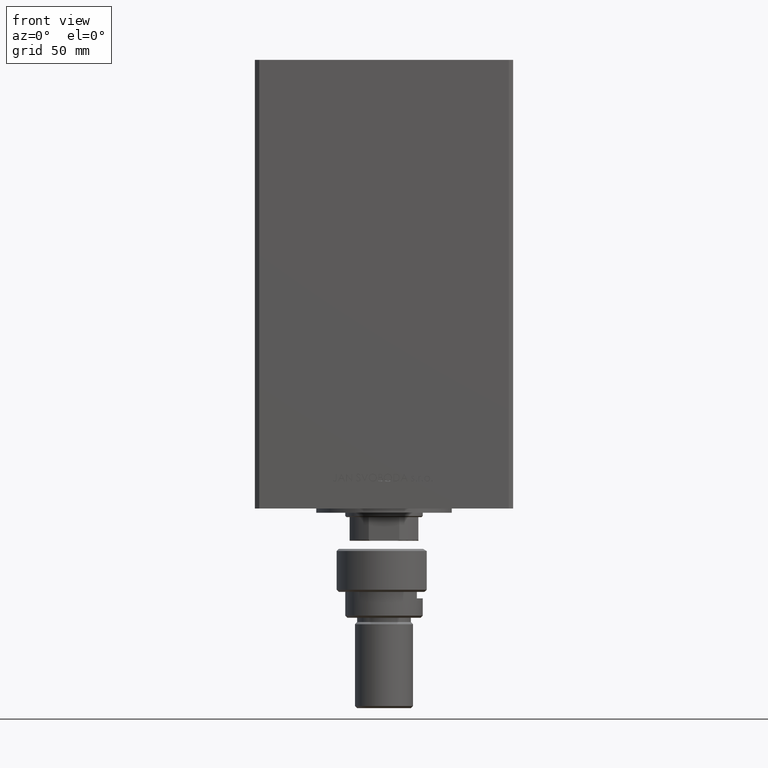
[diagram: clean part render]
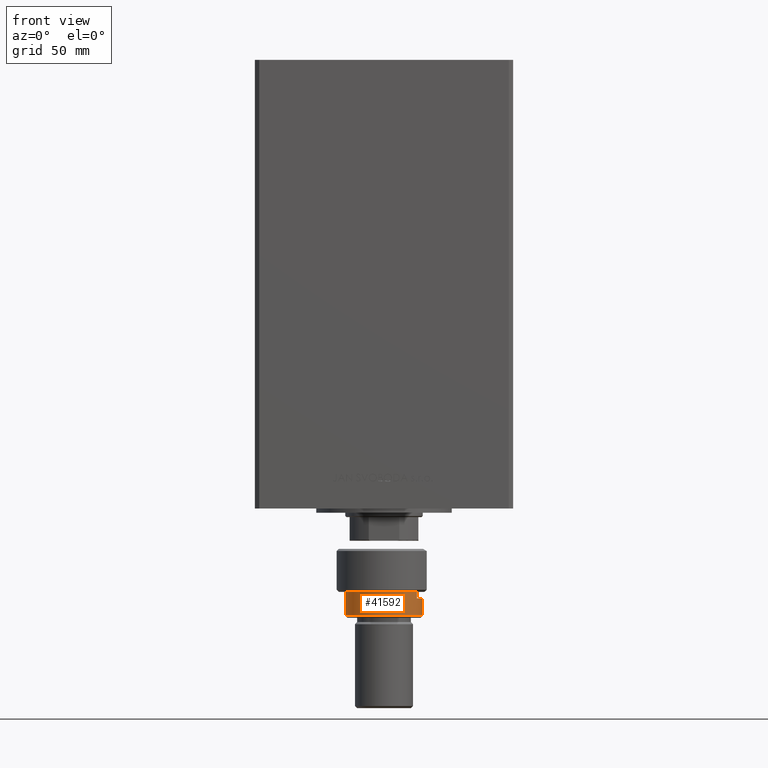
[diagram: same view with one face highlighted and labeled with its STEP entity id]
A machine part, front view. The second image highlights one B-rep face of the part: STEP entity #41592.
In plain terms, the highlighted cylindrical surface (partial cylindrical patch) has radius 18 mm, axis along (0, -0, 1).
Its self-contained STEP definition (entity closure, byte-faithful):
#155 = VERTEX_POINT ( 'NONE', #30071 ) ;
#2081 = CARTESIAN_POINT ( 'NONE',  ( -15.28888485142065434, -9.500000000000000000, 23.00000000000000000 ) ) ;
#3965 = ORIENTED_EDGE ( 'NONE', *, *, #32400, .F. ) ;
#3966 = CARTESIAN_POINT ( 'NONE',  ( 0.000000000000000000, 0.000000000000000000, 32.00000000000000000 ) ) ;
#4006 = ORIENTED_EDGE ( 'NONE', *, *, #27071, .T. ) ;
#4178 = CARTESIAN_POINT ( 'NONE',  ( 0.000000000000000000, 0.000000000000000000, 20.00000000000000000 ) ) ;
#8058 = CARTESIAN_POINT ( 'NONE',  ( 18.00000000000000000, 2.204364238465235428E-15, 30.99999999999999645 ) ) ;
#8271 = CARTESIAN_POINT ( 'NONE',  ( 0.000000000000000000, 0.000000000000000000, 30.99999999999999645 ) ) ;
#9123 = EDGE_LOOP ( 'NONE', ( #3965, #34596, #39172, #19266, #49340, #4006 ) ) ;
#9962 = VECTOR ( 'NONE', #30089, 1000.000000000000000 ) ;
#10508 = LINE ( 'NONE', #14570, #9962 ) ;
#10517 = DIRECTION ( 'NONE',  ( 0.000000000000000000, 0.000000000000000000, -1.000000000000000000 ) ) ;
#10888 = DIRECTION ( 'NONE',  ( -0.000000000000000000, -0.000000000000000000, -1.000000000000000000 ) ) ;
#11016 = DIRECTION ( 'NONE',  ( -1.000000000000000000, 0.000000000000000000, 0.000000000000000000 ) ) ;
#11306 = CIRCLE ( 'NONE', #12120, 18.00000000000000000 ) ;
#12120 = AXIS2_PLACEMENT_3D ( 'NONE', #4178, #27325, #19959 ) ;
#12293 = VERTEX_POINT ( 'NONE', #20474 ) ;
#14570 = CARTESIAN_POINT ( 'NONE',  ( 18.00000000000000000, 2.204364238465235428E-15, 32.00000000000000000 ) ) ;
#14854 = AXIS2_PLACEMENT_3D ( 'NONE', #45398, #10517, #11016 ) ;
#15258 = CIRCLE ( 'NONE', #25028, 18.00000000000000000 ) ;
#19266 = ORIENTED_EDGE ( 'NONE', *, *, #37236, .F. ) ;
#19509 = CARTESIAN_POINT ( 'NONE',  ( -18.00000000000000000, 0.000000000000000000, 30.99999999999999645 ) ) ;
#19959 = DIRECTION ( 'NONE',  ( 1.000000000000000000, 0.000000000000000000, 0.000000000000000000 ) ) ;
#20474 = CARTESIAN_POINT ( 'NONE',  ( -15.28888485142065434, -9.500000000000000000, 19.99999999999999645 ) ) ;
#22303 = DIRECTION ( 'NONE',  ( -1.000000000000000000, 0.000000000000000000, 0.000000000000000000 ) ) ;
#22355 = VERTEX_POINT ( 'NONE', #46410 ) ;
#23293 = FACE_OUTER_BOUND ( 'NONE', #9123, .T. ) ;
#23529 = DIRECTION ( 'NONE',  ( 0.000000000000000000, 0.000000000000000000, -1.000000000000000000 ) ) ;
#25028 = AXIS2_PLACEMENT_3D ( 'NONE', #8271, #23529, #27086 ) ;
#27071 = EDGE_CURVE ( 'NONE', #12293, #155, #11306, .T. ) ;
#27086 = DIRECTION ( 'NONE',  ( 1.000000000000000000, 0.000000000000000000, 0.000000000000000000 ) ) ;
#27104 = DIRECTION ( 'NONE',  ( -0.000000000000000000, -0.000000000000000000, -1.000000000000000000 ) ) ;
#27325 = DIRECTION ( 'NONE',  ( 0.000000000000000000, 0.000000000000000000, 1.000000000000000000 ) ) ;
#27377 = DIRECTION ( 'NONE',  ( -0.000000000000000000, -0.000000000000000000, -1.000000000000000000 ) ) ;
#30071 = CARTESIAN_POINT ( 'NONE',  ( 18.00000000000000000, 2.204364238465235428E-15, 20.00000000000000000 ) ) ;
#30089 = DIRECTION ( 'NONE',  ( -0.000000000000000000, -0.000000000000000000, -1.000000000000000000 ) ) ;
#30481 = CARTESIAN_POINT ( 'NONE',  ( -18.00000000000000000, 0.000000000000000000, 32.00000000000000000 ) ) ;
#32400 = EDGE_CURVE ( 'NONE', #34173, #155, #10508, .T. ) ;
#34018 = CYLINDRICAL_SURFACE ( 'NONE', #48337, 18.00000000000000000 ) ;
#34173 = VERTEX_POINT ( 'NONE', #8058 ) ;
#34596 = ORIENTED_EDGE ( 'NONE', *, *, #49411, .T. ) ;
#37236 = EDGE_CURVE ( 'NONE', #40256, #22355, #45756, .T. ) ;
#38739 = EDGE_CURVE ( 'NONE', #40256, #12293, #45991, .T. ) ;
#39172 = ORIENTED_EDGE ( 'NONE', *, *, #44278, .T. ) ;
#39994 = LINE ( 'NONE', #30481, #44369 ) ;
#40256 = VERTEX_POINT ( 'NONE', #2081 ) ;
#41592 = ADVANCED_FACE ( 'NONE', ( #23293 ), #34018, .T. ) ;
#44278 = EDGE_CURVE ( 'NONE', #46178, #22355, #39994, .T. ) ;
#44369 = VECTOR ( 'NONE', #10888, 1000.000000000000000 ) ;
#45398 = CARTESIAN_POINT ( 'NONE',  ( 0.000000000000000000, 0.000000000000000000, 23.00000000000000000 ) ) ;
#45756 = CIRCLE ( 'NONE', #14854, 18.00000000000000000 ) ;
#45797 = VECTOR ( 'NONE', #27377, 1000.000000000000000 ) ;
#45991 = LINE ( 'NONE', #46244, #45797 ) ;
#46178 = VERTEX_POINT ( 'NONE', #19509 ) ;
#46244 = CARTESIAN_POINT ( 'NONE',  ( -15.28888485142065434, -9.500000000000000000, 32.00000000000000000 ) ) ;
#46410 = CARTESIAN_POINT ( 'NONE',  ( -18.00000000000000000, 0.000000000000000000, 23.00000000000000000 ) ) ;
#48337 = AXIS2_PLACEMENT_3D ( 'NONE', #3966, #27104, #22303 ) ;
#49340 = ORIENTED_EDGE ( 'NONE', *, *, #38739, .T. ) ;
#49411 = EDGE_CURVE ( 'NONE', #34173, #46178, #15258, .T. ) ;